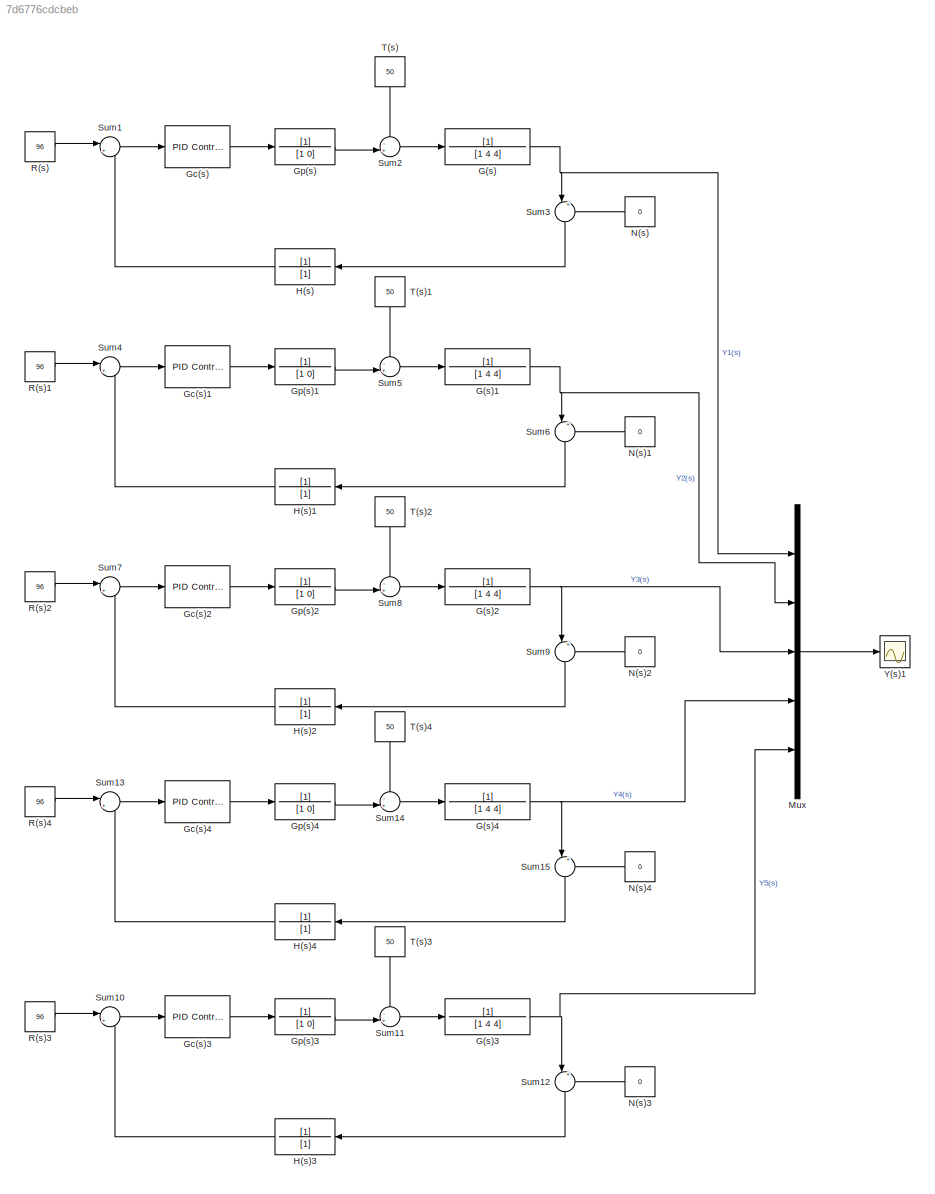
MODEL slx_7d6776cdcbeb
KIND model
CONFIG AbsTol = auto
CONFIG EnableMultiTasking = off
CONFIG FixedStep = auto
CONFIG MaxStep = auto
CONFIG MinStep = auto
CONFIG RelTol = 1e-3
CONFIG SampleTimeConstraint = Unconstrained
CONFIG SolverName = VariableStepAuto
CONFIG StartTime = 0.0
CONFIG StopTime = 10.0
BLOCK [TransferFcn] G(s)
  Denominator = [1 4 4]
BLOCK [TransferFcn] G(s)1
  Denominator = [1 4 4]
BLOCK [TransferFcn] G(s)2
  Denominator = [1 4 4]
BLOCK [TransferFcn] G(s)3
  Denominator = [1 4 4]
BLOCK [TransferFcn] G(s)4
  Denominator = [1 4 4]
BLOCK [Reference] Gc(s)  REF=slpidlib/PID Controller
  LibrarySourceBlock = simulink/Continuous/PID Controller
  SourceBlock = slpidlib/PID Controller
  SourceType = PID 1dof
BLOCK [Reference] Gc(s)1  REF=slpidlib/PID Controller
  LibrarySourceBlock = simulink/Continuous/PID Controller
  SourceBlock = slpidlib/PID Controller
  SourceType = PID 1dof
BLOCK [Reference] Gc(s)2  REF=slpidlib/PID Controller
  LibrarySourceBlock = simulink/Continuous/PID Controller
  SourceBlock = slpidlib/PID Controller
  SourceType = PID 1dof
BLOCK [Reference] Gc(s)3  REF=slpidlib/PID Controller
  LibrarySourceBlock = simulink/Continuous/PID Controller
  SourceBlock = slpidlib/PID Controller
  SourceType = PID 1dof
BLOCK [Reference] Gc(s)4  REF=slpidlib/PID Controller
  LibrarySourceBlock = simulink/Continuous/PID Controller
  SourceBlock = slpidlib/PID Controller
  SourceType = PID 1dof
BLOCK [TransferFcn] Gp(s)
  Denominator = [1 0]
BLOCK [TransferFcn] Gp(s)1
  Denominator = [1 0]
BLOCK [TransferFcn] Gp(s)2
  Denominator = [1 0]
BLOCK [TransferFcn] Gp(s)3
  Denominator = [1 0]
BLOCK [TransferFcn] Gp(s)4
  Denominator = [1 0]
BLOCK [TransferFcn] H(s)
  Denominator = [1]
BLOCK [TransferFcn] H(s)1
  Denominator = [1]
BLOCK [TransferFcn] H(s)2
  Denominator = [1]
BLOCK [TransferFcn] H(s)3
  Denominator = [1]
BLOCK [TransferFcn] H(s)4
  Denominator = [1]
BLOCK [Mux] Mux
  DisplayOption = bar
  Inputs = 5
BLOCK [Constant] N(s)
  Value = 0
BLOCK [Constant] N(s)1
  Value = 0
BLOCK [Constant] N(s)2
  Value = 0
BLOCK [Constant] N(s)3
  Value = 0
BLOCK [Constant] N(s)4
  Value = 0
BLOCK [Constant] R(s)
  Value = 96
BLOCK [Constant] R(s)1
  Value = 96
BLOCK [Constant] R(s)2
  Value = 96
BLOCK [Constant] R(s)3
  Value = 96
BLOCK [Constant] R(s)4
  Value = 96
BLOCK [Sum] Sum1
  Inputs = |+-
BLOCK [Sum] Sum10
  Inputs = |+-
BLOCK [Sum] Sum11
  Inputs = -+|
BLOCK [Sum] Sum12
  Inputs = |++
  NameLocation = left
BLOCK [Sum] Sum13
  Inputs = |+-
BLOCK [Sum] Sum14
  Inputs = -+|
BLOCK [Sum] Sum15
  Inputs = |++
  NameLocation = left
BLOCK [Sum] Sum2
  Inputs = -+|
BLOCK [Sum] Sum3
  Inputs = |++
  NameLocation = left
BLOCK [Sum] Sum4
  Inputs = |+-
BLOCK [Sum] Sum5
  Inputs = -+|
BLOCK [Sum] Sum6
  Inputs = |++
  NameLocation = left
BLOCK [Sum] Sum7
  Inputs = |+-
BLOCK [Sum] Sum8
  Inputs = -+|
BLOCK [Sum] Sum9
  Inputs = |++
  NameLocation = left
BLOCK [Constant] T(s)
  NameLocation = left
  Value = 50
BLOCK [Constant] T(s)1
  NameLocation = left
  Value = 50
BLOCK [Constant] T(s)2
  NameLocation = left
  Value = 50
BLOCK [Constant] T(s)3
  NameLocation = left
  Value = 50
BLOCK [Constant] T(s)4
  NameLocation = left
  Value = 50
BLOCK [Scope] Y(s)1
  Floating = off
  NumInputPorts = 1
  ScopeSpecificationString = Simulink.scopes.TimeScopeBlockCfg('CurrentConfiguration', extmgr.ConfigurationSet(extmgr.Configuration('Core','General UI',true),extmgr.Configuration('Core','Source UI',true),extmgr.Configuration('Sources','WiredSimulink',true,'DataLoggingVariableName','ScopeData1'),extmgr.Configuration('Visuals','Time Domain',true,'SerializedDisplays',{struct('MinYLimReal','-5','MaxYLimReal','160','YLabelReal',''...<+2078ch>
NET G(s)1:1 -> Mux:2, Sum6:1
NET G(s)2:1 -> Mux:3, Sum9:1
NET G(s)3:1 -> Mux:5, Sum12:1
NET G(s)4:1 -> Mux:4, Sum15:1
NET G(s):1 -> Mux:1, Sum3:1
LINE Gc(s)1:1 -> Gp(s)1:1
LINE Gc(s)2:1 -> Gp(s)2:1
LINE Gc(s)3:1 -> Gp(s)3:1
LINE Gc(s)4:1 -> Gp(s)4:1
LINE Gc(s):1 -> Gp(s):1
LINE Gp(s)1:1 -> Sum5:2
LINE Gp(s)2:1 -> Sum8:2
LINE Gp(s)3:1 -> Sum11:2
LINE Gp(s)4:1 -> Sum14:2
LINE Gp(s):1 -> Sum2:2
LINE H(s)1:1 -> Sum4:2
LINE H(s)2:1 -> Sum7:2
LINE H(s)3:1 -> Sum10:2
LINE H(s)4:1 -> Sum13:2
LINE H(s):1 -> Sum1:2
LINE Mux:1 -> Y(s)1:1
LINE N(s)1:1 -> Sum6:2
LINE N(s)2:1 -> Sum9:2
LINE N(s)3:1 -> Sum12:2
LINE N(s)4:1 -> Sum15:2
LINE N(s):1 -> Sum3:2
LINE R(s)1:1 -> Sum4:1
LINE R(s)2:1 -> Sum7:1
LINE R(s)3:1 -> Sum10:1
LINE R(s)4:1 -> Sum13:1
LINE R(s):1 -> Sum1:1
LINE Sum10:1 -> Gc(s)3:1
LINE Sum11:1 -> G(s)3:1
LINE Sum12:1 -> H(s)3:1
LINE Sum13:1 -> Gc(s)4:1
LINE Sum14:1 -> G(s)4:1
LINE Sum15:1 -> H(s)4:1
LINE Sum1:1 -> Gc(s):1
LINE Sum2:1 -> G(s):1
LINE Sum3:1 -> H(s):1
LINE Sum4:1 -> Gc(s)1:1
LINE Sum5:1 -> G(s)1:1
LINE Sum6:1 -> H(s)1:1
LINE Sum7:1 -> Gc(s)2:1
LINE Sum8:1 -> G(s)2:1
LINE Sum9:1 -> H(s)2:1
LINE T(s)1:1 -> Sum5:1
LINE T(s)2:1 -> Sum8:1
LINE T(s)3:1 -> Sum11:1
LINE T(s)4:1 -> Sum14:1
LINE T(s):1 -> Sum2:1
note: NET lines group one-source signal fan-out (src -> all destinations, sorted); 1:1 wires keep LINE
